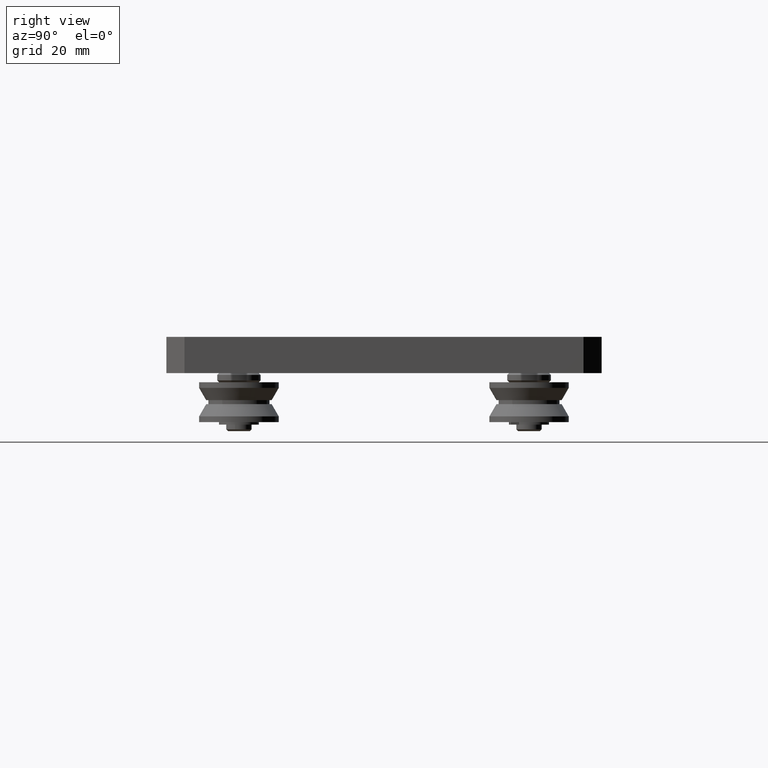
[diagram: clean part render]
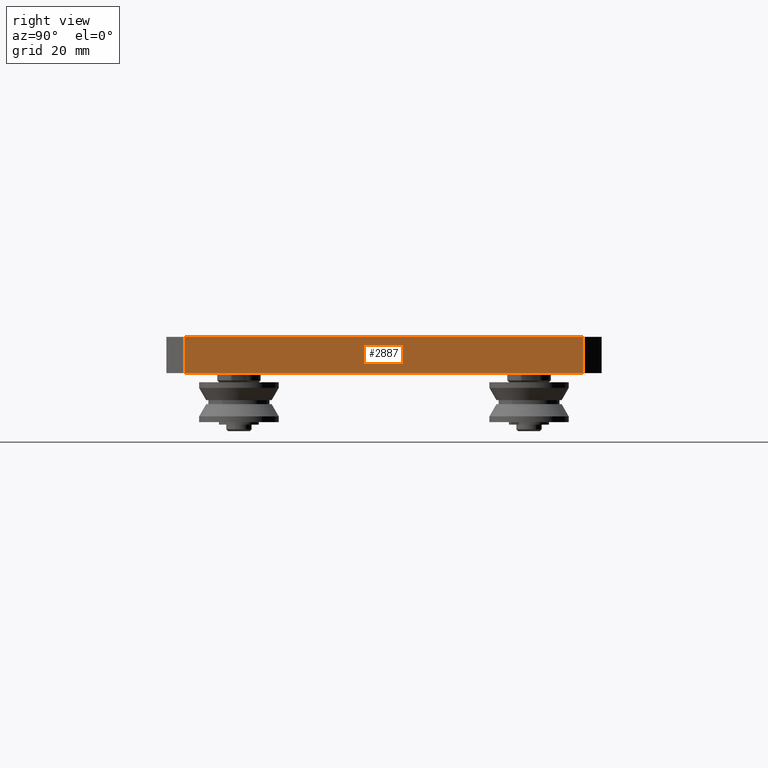
[diagram: same view with one face highlighted and labeled with its STEP entity id]
A machine part, right view. The second image highlights one B-rep face of the part: STEP entity #2887.
In plain terms, the highlighted planar face has unit normal (1, 0, 0).
Its self-contained STEP definition (entity closure, byte-faithful):
#433=FACE_OUTER_BOUND('',#625,.T.);
#625=EDGE_LOOP('',(#1989,#1990,#1991,#1992));
#852=LINE('',#4638,#1080);
#857=LINE('',#4660,#1085);
#859=LINE('',#4664,#1087);
#860=LINE('',#4665,#1088);
#1080=VECTOR('',#3674,10.);
#1085=VECTOR('',#3693,10.);
#1087=VECTOR('',#3697,10.);
#1088=VECTOR('',#3698,10.);
#1306=VERTEX_POINT('',#4635);
#1307=VERTEX_POINT('',#4637);
#1317=VERTEX_POINT('',#4658);
#1318=VERTEX_POINT('',#4663);
#1566=EDGE_CURVE('',#1306,#1307,#852,.T.);
#1577=EDGE_CURVE('',#1317,#1306,#857,.T.);
#1579=EDGE_CURVE('',#1317,#1318,#859,.T.);
#1580=EDGE_CURVE('',#1307,#1318,#860,.T.);
#1989=ORIENTED_EDGE('',*,*,#1577,.F.);
#1990=ORIENTED_EDGE('',*,*,#1579,.T.);
#1991=ORIENTED_EDGE('',*,*,#1580,.F.);
#1992=ORIENTED_EDGE('',*,*,#1566,.F.);
#2779=PLANE('',#3301);
#2887=ADVANCED_FACE('',(#433),#2779,.T.);
#3301=AXIS2_PLACEMENT_3D('',#4662,#3695,#3696);
#3674=DIRECTION('',(0.,-1.,0.));
#3693=DIRECTION('',(0.,0.,-1.));
#3695=DIRECTION('center_axis',(1.,0.,0.));
#3696=DIRECTION('ref_axis',(0.,0.,-1.));
#3697=DIRECTION('',(0.,-1.,0.));
#3698=DIRECTION('',(0.,0.,1.));
#4635=CARTESIAN_POINT('',(80.,55.,0.));
#4637=CARTESIAN_POINT('',(80.,-55.,0.));
#4638=CARTESIAN_POINT('',(80.,60.,0.));
#4658=CARTESIAN_POINT('',(80.,55.,10.));
#4660=CARTESIAN_POINT('',(80.,55.,0.));
#4662=CARTESIAN_POINT('Origin',(80.,60.,0.));
#4663=CARTESIAN_POINT('',(80.,-55.,10.));
#4664=CARTESIAN_POINT('',(80.,60.,10.));
#4665=CARTESIAN_POINT('',(80.,-55.,0.));